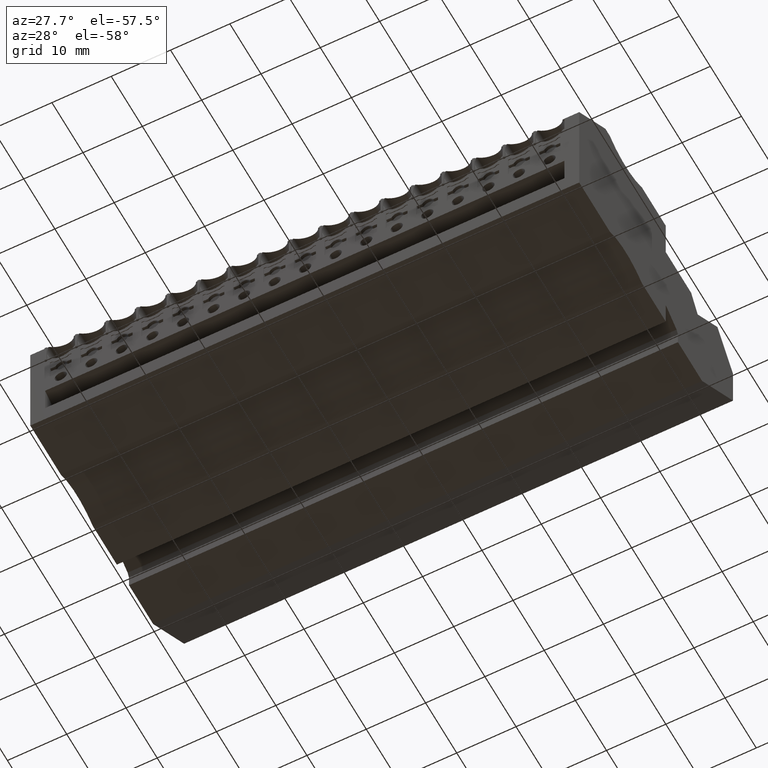
[diagram: clean part render]
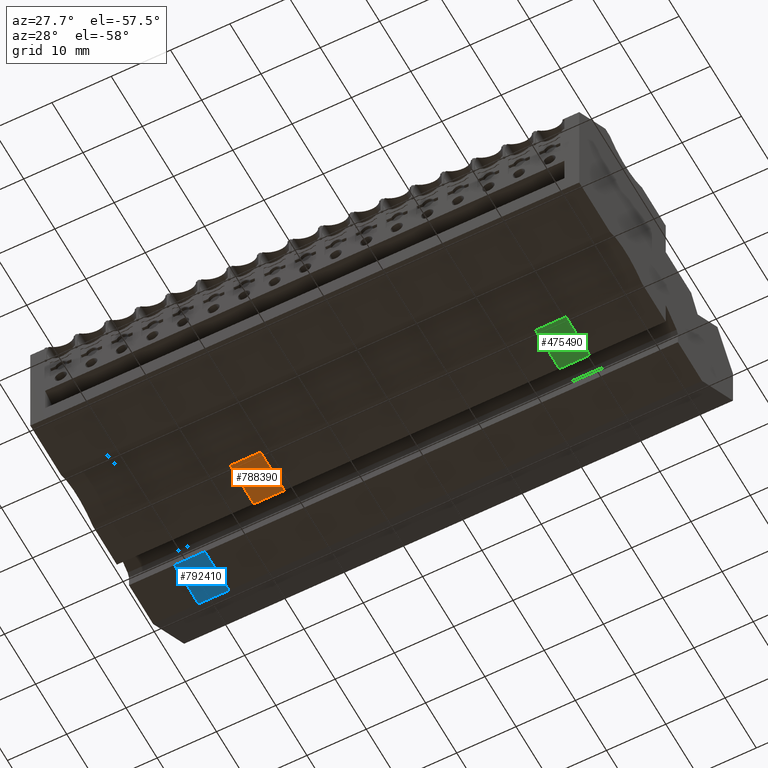
[diagram: same view with three faces highlighted in distinct colors, each labeled with its STEP entity id]
A machine part, auxiliary view with three faces highlighted in distinct colors.
Their STEP definitions:

[orange] entity #788390 — the highlighted planar face has unit normal (0, 0, -1).
#24620=CARTESIAN_POINT('',(448.253158758123,670.9343476124,
88.7199999988457));
#24630=DIRECTION('',(9.426610326572E-11,-5.56333266712204E-10,-1.));
#24640=VECTOR('',#24630,1.);
#24650=LINE('',#24620,#24640);
#182890=CARTESIAN_POINT('',(432.124069232021,670.934347625639,
68.1199999950703));
#182900=DIRECTION('',(-1.20456572490157E-9,-1.,5.82229711732946E-10));
#182910=DIRECTION('',(1.,-1.20456572494379E-9,-7.2511997674725E-11));
#182920=AXIS2_PLACEMENT_3D('',#182890,#182900,#182910);
#182930=PLANE('',#182920);
#182940=CARTESIAN_POINT('',(440.590572493105,670.934347727425,
284.419999991964));
#182950=DIRECTION('',(-1.66699262872186E-10,-4.90742678260922E-10,-1.));
#182960=VECTOR('',#182950,1.);
#182970=LINE('',#182940,#182960);
#787930=CARTESIAN_POINT('',(440.590572462881,670.934347630433,
93.8699999986751));
#787940=VERTEX_POINT('',#787930);
#787970=CARTESIAN_POINT('',(440.590572460482,670.934347627434,
88.7199999987923));
#787980=VERTEX_POINT('',#787970);
#787990=EDGE_CURVE('',#787940,#787980,#182970,.T.);
#788180=ORIENTED_EDGE('',*,*,#787990,.T.);
#788190=CARTESIAN_POINT('',(435.968902532099,670.934347636,
93.8699999990413));
#788200=DIRECTION('',(1.,-1.20456572494379E-9,-7.92260575924475E-11));
#788210=VECTOR('',#788200,1.);
#788220=LINE('',#788190,#788210);
#788230=CARTESIAN_POINT('',(448.253158745505,670.934347621202,
93.869999998068));
#788240=VERTEX_POINT('',#788230);
#788250=EDGE_CURVE('',#787940,#788240,#788220,.T.);
#788260=ORIENTED_EDGE('',*,*,#788250,.F.);
#788270=CARTESIAN_POINT('',(448.253158745623,670.934347618204,
88.7199999981853));
#788280=VERTEX_POINT('',#788270);
#788290=EDGE_CURVE('',#788240,#788280,#24650,.T.);
#788300=ORIENTED_EDGE('',*,*,#788290,.F.);
#788310=CARTESIAN_POINT('',(435.96890253283,670.934347633001,
88.7199999991585));
#788320=DIRECTION('',(-1.,1.20456572494379E-9,7.92260575924475E-11));
#788330=VECTOR('',#788320,1.);
#788340=LINE('',#788310,#788330);
#788350=EDGE_CURVE('',#788280,#787980,#788340,.T.);
#788360=ORIENTED_EDGE('',*,*,#788350,.F.);
#788370=EDGE_LOOP('',(#788360,#788300,#788260,#788180));
#788380=FACE_OUTER_BOUND('',#788370,.T.);
#788390=ADVANCED_FACE('',(#788380),#182930,.T.);

[blue] entity #792410 — the highlighted planar face has unit normal (0, 0, -1).
#46730=CARTESIAN_POINT('',(432.124069231659,670.634347625639,
68.1199999952488));
#46740=DIRECTION('',(-1.20456572490157E-9,-1.,5.82229711732946E-10));
#46750=DIRECTION('',(1.,-1.20456572494379E-9,-7.2511997674725E-11));
#46760=AXIS2_PLACEMENT_3D('',#46730,#46740,#46750);
#46770=PLANE('',#46760);
#46920=CARTESIAN_POINT('',(452.153158755135,670.634347604511,
73.2699999980519));
#46930=VERTEX_POINT('',#46920);
#46960=CARTESIAN_POINT('',(436.26890253456,670.634347623644,
73.2699999993104));
#46970=DIRECTION('',(-1.,1.20456572494379E-9,7.92260575924475E-11));
#46980=VECTOR('',#46970,1.);
#46990=LINE('',#46960,#46980);
#47000=CARTESIAN_POINT('',(459.905573340993,670.634347595172,
73.2699999974377));
#47010=VERTEX_POINT('',#47000);
#47020=EDGE_CURVE('',#47010,#46930,#46990,.T.);
#791820=CARTESIAN_POINT('',(459.905573340993,670.634347587358,
73.2700000038368));
#791830=DIRECTION('',(2.48917491584714E-10,5.5633326625038E-10,1.));
#791840=VECTOR('',#791830,1.);
#791850=LINE('',#791820,#791840);
#791860=CARTESIAN_POINT('',(459.905573335703,670.634347588832,
75.9199999847034));
#791870=VERTEX_POINT('',#791860);
#791880=EDGE_CURVE('',#47010,#791870,#791850,.T.);
#791900=CARTESIAN_POINT('',(459.905573333891,670.634347587834,
78.4199999774507));
#791910=DIRECTION('',(-3.51177059947896E-10,-5.0369111157255E-10,-1.));
#791920=VECTOR('',#791910,1.);
#791930=LINE('',#791900,#791920);
#791940=CARTESIAN_POINT('',(459.905573340141,670.634347598171,
78.4199999974377));
#791950=VERTEX_POINT('',#791940);
#791960=EDGE_CURVE('',#791950,#791870,#791930,.T.);
#792140=CARTESIAN_POINT('',(452.153158755497,670.63434759779,
73.2700000025529));
#792150=DIRECTION('',(9.73617497942318E-11,5.56333266454329E-10,1.));
#792160=VECTOR('',#792150,1.);
#792170=LINE('',#792140,#792160);
#792180=CARTESIAN_POINT('',(452.15315875454,670.634347597231,
75.9199999865842));
#792190=VERTEX_POINT('',#792180);
#792200=EDGE_CURVE('',#46930,#792190,#792170,.T.);
#792210=ORIENTED_EDGE('',*,*,#792200,.F.);
#792220=CARTESIAN_POINT('',(452.153158754952,670.634347598491,
78.4199999799933));
#792230=DIRECTION('',(1.64639387953552E-10,5.03691111828967E-10,1.));
#792240=VECTOR('',#792230,1.);
#792250=LINE('',#792220,#792240);
#792260=CARTESIAN_POINT('',(452.153158755615,670.634347607509,
78.4199999980519));
#792270=VERTEX_POINT('',#792260);
#792280=EDGE_CURVE('',#792190,#792270,#792250,.T.);
#792290=ORIENTED_EDGE('',*,*,#792280,.F.);
#792300=CARTESIAN_POINT('',(436.268902533829,670.634347626643,
78.4199999993104));
#792310=DIRECTION('',(-1.,1.20456572494379E-9,7.92260575924475E-11));
#792320=VECTOR('',#792310,1.);
#792330=LINE('',#792300,#792320);
#792340=EDGE_CURVE('',#791950,#792270,#792330,.T.);
#792350=ORIENTED_EDGE('',*,*,#792340,.T.);
#792360=ORIENTED_EDGE('',*,*,#791960,.F.);
#792370=ORIENTED_EDGE('',*,*,#791880,.T.);
#792380=ORIENTED_EDGE('',*,*,#47020,.F.);
#792390=EDGE_LOOP('',(#792380,#792370,#792360,#792350,#792290,#792210));
#792400=FACE_OUTER_BOUND('',#792390,.T.);
#792410=ADVANCED_FACE('',(#792400),#46770,.T.);

[green] entity #475490 — the highlighted planar face has unit normal (0, 0, -1).
#24620=CARTESIAN_POINT('',(448.253158758123,670.9343476124,
88.7199999988457));
#24630=DIRECTION('',(9.426610326572E-11,-5.56333266712204E-10,-1.));
#24640=VECTOR('',#24630,1.);
#24650=LINE('',#24620,#24640);
#182890=CARTESIAN_POINT('',(432.124069232021,670.934347625639,
68.1199999950703));
#182900=DIRECTION('',(-1.20456572490157E-9,-1.,5.82229711732946E-10));
#182910=DIRECTION('',(1.,-1.20456572494379E-9,-7.2511997674725E-11));
#182920=AXIS2_PLACEMENT_3D('',#182890,#182900,#182910);
#182930=PLANE('',#182920);
#182940=CARTESIAN_POINT('',(440.590572493105,670.934347727425,
284.419999991964));
#182950=DIRECTION('',(-1.66699262872186E-10,-4.90742678260922E-10,-1.));
#182960=VECTOR('',#182950,1.);
#182970=LINE('',#182940,#182960);
#390550=CARTESIAN_POINT('',(448.253158744445,670.934347648189,
140.219999998068));
#390560=VERTEX_POINT('',#390550);
#390750=CARTESIAN_POINT('',(440.590572468732,670.934347656863,
140.219999999033));
#390760=VERTEX_POINT('',#390750);
#390810=CARTESIAN_POINT('',(435.968902525521,670.934347662986,
140.219999999041));
#390820=DIRECTION('',(1.,-1.20456572494379E-9,-7.92260575924475E-11));
#390830=VECTOR('',#390820,1.);
#390840=LINE('',#390810,#390830);
#390850=EDGE_CURVE('',#390760,#390560,#390840,.T.);
#474760=CARTESIAN_POINT('',(440.590572469926,670.934347660417,
145.369999998792));
#474770=VERTEX_POINT('',#474760);
#474800=EDGE_CURVE('',#474770,#390760,#182970,.T.);
#474930=CARTESIAN_POINT('',(448.253158752783,670.934347651187,
145.369999998185));
#474940=VERTEX_POINT('',#474930);
#474950=EDGE_CURVE('',#474940,#390560,#24650,.T.);
#475380=ORIENTED_EDGE('',*,*,#474800,.T.);
#475390=CARTESIAN_POINT('',(435.96890252479,670.934347665984,
145.369999999158));
#475400=DIRECTION('',(-1.,1.20456572494379E-9,7.92260575924475E-11));
#475410=VECTOR('',#475400,1.);
#475420=LINE('',#475390,#475410);
#475430=EDGE_CURVE('',#474940,#474770,#475420,.T.);
#475440=ORIENTED_EDGE('',*,*,#475430,.T.);
#475450=ORIENTED_EDGE('',*,*,#474950,.F.);
#475460=ORIENTED_EDGE('',*,*,#390850,.T.);
#475470=EDGE_LOOP('',(#475460,#475450,#475440,#475380));
#475480=FACE_OUTER_BOUND('',#475470,.T.);
#475490=ADVANCED_FACE('',(#475480),#182930,.T.);